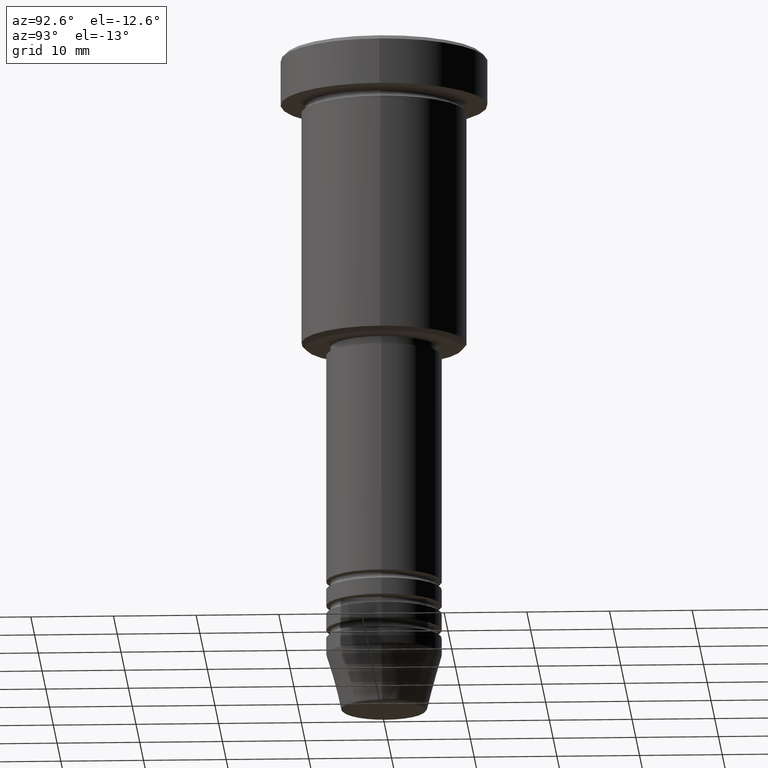
[diagram: clean part render]
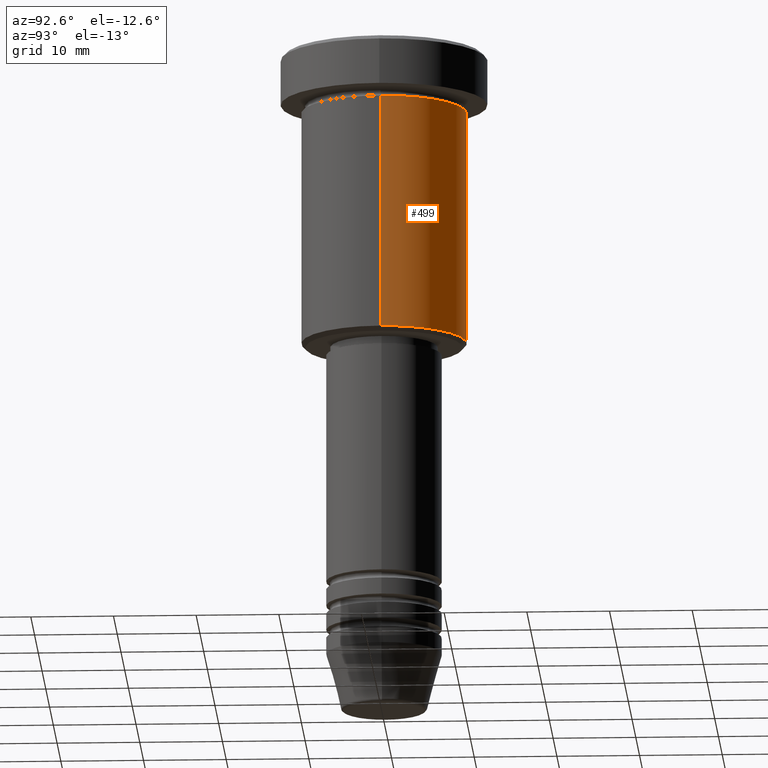
[diagram: same view with one face highlighted and labeled with its STEP entity id]
A machine part, auxiliary view. The second image highlights one B-rep face of the part: STEP entity #499.
In plain terms, the highlighted cylindrical surface (partial cylindrical patch) has radius 10 mm, axis along (-0, -0, 1).
Its self-contained STEP definition (entity closure, byte-faithful):
#13 = DIRECTION ( 'NONE',  ( -0.000000000000000000, -0.000000000000000000, 1.000000000000000000 ) ) ;
#27 = LINE ( 'NONE', #967, #352 ) ;
#109 = EDGE_CURVE ( 'NONE', #211, #1149, #602, .T. ) ;
#211 = VERTEX_POINT ( 'NONE', #1090 ) ;
#246 = DIRECTION ( 'NONE',  ( -0.000000000000000000, -0.000000000000000000, 1.000000000000000000 ) ) ;
#278 = EDGE_CURVE ( 'NONE', #902, #1149, #923, .T. ) ;
#289 = AXIS2_PLACEMENT_3D ( 'NONE', #541, #623, #1172 ) ;
#294 = DIRECTION ( 'NONE',  ( -0.000000000000000000, -0.000000000000000000, 1.000000000000000000 ) ) ;
#352 = VECTOR ( 'NONE', #860, 1000.000000000000000 ) ;
#366 = AXIS2_PLACEMENT_3D ( 'NONE', #1044, #246, #613 ) ;
#417 = CARTESIAN_POINT ( 'NONE',  ( -10.00000000000000000, 1.224646799147353256E-15, -35.50000000000000000 ) ) ;
#428 = AXIS2_PLACEMENT_3D ( 'NONE', #670, #294, #665 ) ;
#466 = ORIENTED_EDGE ( 'NONE', *, *, #1081, .T. ) ;
#499 = ADVANCED_FACE ( 'NONE', ( #1109 ), #858, .T. ) ;
#541 = CARTESIAN_POINT ( 'NONE',  ( 0.000000000000000000, 0.000000000000000000, -35.50000000000000000 ) ) ;
#601 = ORIENTED_EDGE ( 'NONE', *, *, #874, .F. ) ;
#602 = CIRCLE ( 'NONE', #366, 10.00000000000000000 ) ;
#613 = DIRECTION ( 'NONE',  ( 1.000000000000000000, 0.000000000000000000, 0.000000000000000000 ) ) ;
#623 = DIRECTION ( 'NONE',  ( -0.000000000000000000, -0.000000000000000000, 1.000000000000000000 ) ) ;
#665 = DIRECTION ( 'NONE',  ( 1.000000000000000000, 0.000000000000000000, 0.000000000000000000 ) ) ;
#670 = CARTESIAN_POINT ( 'NONE',  ( 0.000000000000000000, 0.000000000000000000, 0.000000000000000000 ) ) ;
#739 = ORIENTED_EDGE ( 'NONE', *, *, #278, .T. ) ;
#833 = CARTESIAN_POINT ( 'NONE',  ( -10.00000000000000000, 1.224646799147353256E-15, 0.000000000000000000 ) ) ;
#843 = VECTOR ( 'NONE', #13, 1000.000000000000000 ) ;
#848 = CIRCLE ( 'NONE', #289, 10.00000000000000000 ) ;
#858 = CYLINDRICAL_SURFACE ( 'NONE', #428, 10.00000000000000000 ) ;
#860 = DIRECTION ( 'NONE',  ( -0.000000000000000000, -0.000000000000000000, 1.000000000000000000 ) ) ;
#869 = ORIENTED_EDGE ( 'NONE', *, *, #109, .F. ) ;
#874 = EDGE_CURVE ( 'NONE', #1071, #211, #27, .T. ) ;
#902 = VERTEX_POINT ( 'NONE', #417 ) ;
#923 = LINE ( 'NONE', #833, #843 ) ;
#967 = CARTESIAN_POINT ( 'NONE',  ( 10.00000000000000000, 0.000000000000000000, 0.000000000000000000 ) ) ;
#978 = CARTESIAN_POINT ( 'NONE',  ( 10.00000000000000000, 0.000000000000000000, -35.50000000000000000 ) ) ;
#1044 = CARTESIAN_POINT ( 'NONE',  ( 0.000000000000000000, 0.000000000000000000, -6.999999999999996447 ) ) ;
#1071 = VERTEX_POINT ( 'NONE', #978 ) ;
#1081 = EDGE_CURVE ( 'NONE', #1071, #902, #848, .T. ) ;
#1090 = CARTESIAN_POINT ( 'NONE',  ( 10.00000000000000000, 0.000000000000000000, -6.999999999999996447 ) ) ;
#1109 = FACE_OUTER_BOUND ( 'NONE', #1121, .T. ) ;
#1121 = EDGE_LOOP ( 'NONE', ( #466, #739, #869, #601 ) ) ;
#1142 = CARTESIAN_POINT ( 'NONE',  ( -10.00000000000000000, 1.224646799147353256E-15, -6.999999999999996447 ) ) ;
#1149 = VERTEX_POINT ( 'NONE', #1142 ) ;
#1172 = DIRECTION ( 'NONE',  ( -1.000000000000000000, 0.000000000000000000, 0.000000000000000000 ) ) ;